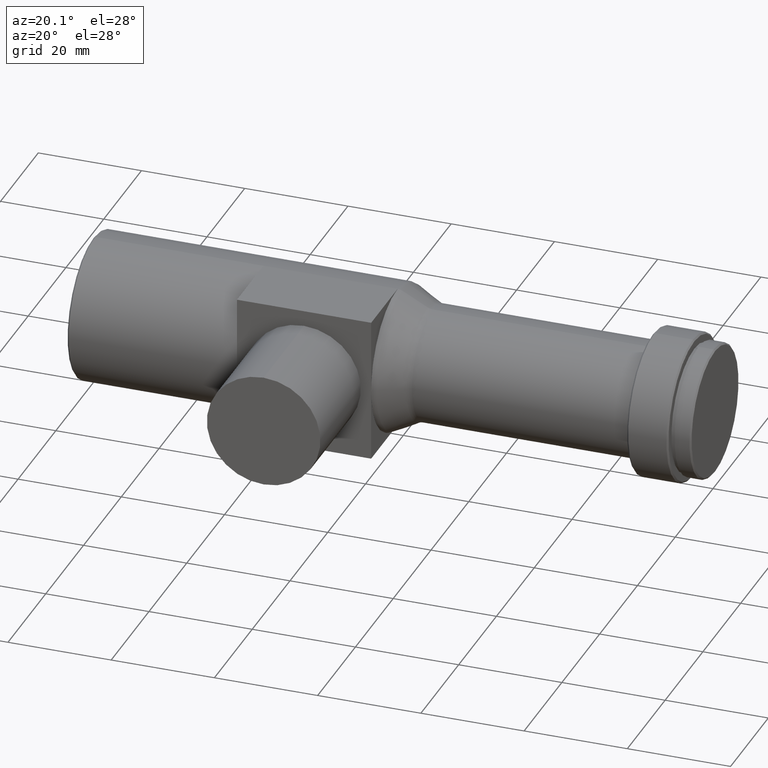
[diagram: clean part render]
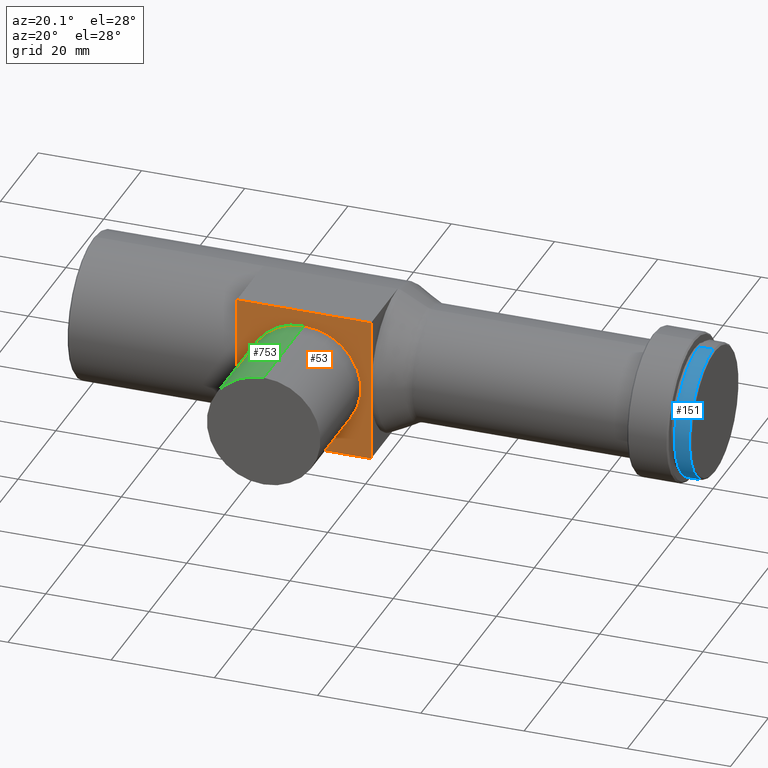
[diagram: same view with three faces highlighted in distinct colors, each labeled with its STEP entity id]
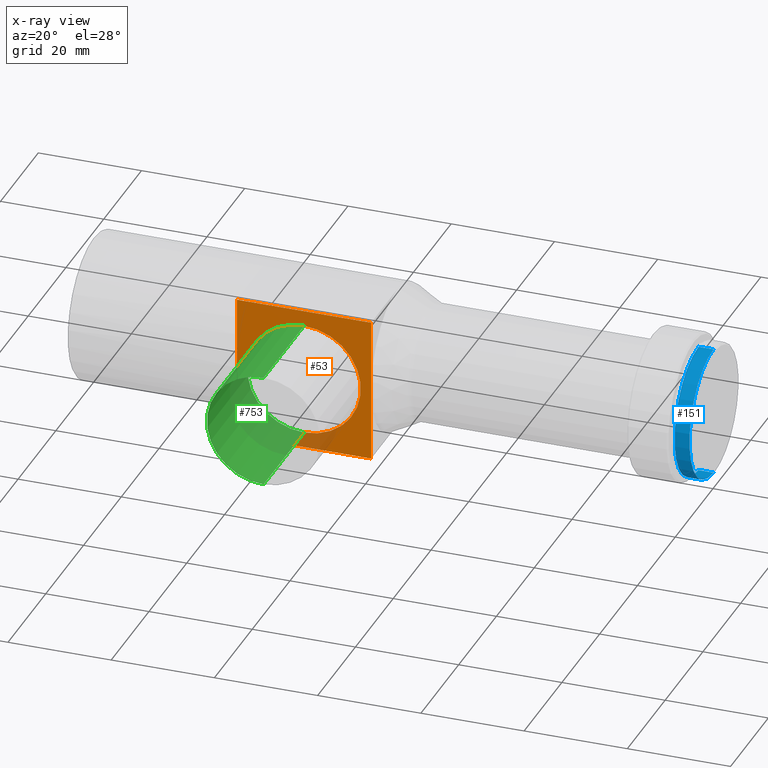
[diagram: x-ray of the same camera — body ghosted, the three highlighted faces saturated]
A machine part, auxiliary view with three faces highlighted in distinct colors.
The next image is the same camera in x-ray (body ghosted, the three faces saturated) — at least one of them is partly hidden behind the body in this view.
Their STEP definitions:

[orange] entity #53 — the highlighted planar face has unit normal (0, 1, 0).
#12 = EDGE_CURVE ( 'NONE', #388, #1017, #452, .T. ) ;
#20 = ORIENTED_EDGE ( 'NONE', *, *, #863, .F. ) ;
#36 = VERTEX_POINT ( 'NONE', #768 ) ;
#37 = ORIENTED_EDGE ( 'NONE', *, *, #716, .T. ) ;
#39 = EDGE_CURVE ( 'NONE', #36, #77, #462, .T. ) ;
#53 = ADVANCED_FACE ( 'NONE', ( #989, #427 ), #937, .F. ) ;
#63 = EDGE_CURVE ( 'NONE', #584, #829, #1081, .T. ) ;
#70 = DIRECTION ( 'NONE',  ( -0.0000000000000000000, 1.000000000000000000, -0.0000000000000000000 ) ) ;
#77 = VERTEX_POINT ( 'NONE', #678 ) ;
#94 = AXIS2_PLACEMENT_3D ( 'NONE', #1011, #1007, #334 ) ;
#100 = CARTESIAN_POINT ( 'NONE',  ( 32.89999999999999900, -14.00000000000000000, 14.00000000000000000 ) ) ;
#162 = CARTESIAN_POINT ( 'NONE',  ( 32.89999999999999900, -14.00000000000000000, 0.0000000000000000000 ) ) ;
#164 = CARTESIAN_POINT ( 'NONE',  ( 32.89999999999999900, -14.00000000000000000, 14.00000000000000000 ) ) ;
#214 = CARTESIAN_POINT ( 'NONE',  ( 58.89999999999999100, -14.00000000000000000, 14.00000000000000000 ) ) ;
#233 = LINE ( 'NONE', #565, #841 ) ;
#296 = DIRECTION ( 'NONE',  ( -0.0000000000000000000, -0.0000000000000000000, -1.000000000000000000 ) ) ;
#316 = LINE ( 'NONE', #214, #638 ) ;
#321 = ORIENTED_EDGE ( 'NONE', *, *, #63, .T. ) ;
#328 = EDGE_CURVE ( 'NONE', #77, #801, #316, .T. ) ;
#331 = VECTOR ( 'NONE', #296, 1000.000000000000000 ) ;
#334 = DIRECTION ( 'NONE',  ( 0.0000000000000000000, 0.0000000000000000000, 1.000000000000000000 ) ) ;
#347 = CARTESIAN_POINT ( 'NONE',  ( 45.89999999999999900, -14.00000000000000000, 10.99999999999999600 ) ) ;
#355 = CARTESIAN_POINT ( 'NONE',  ( 32.89999999999999900, -14.00000000000000000, -14.00000000000000000 ) ) ;
#388 = VERTEX_POINT ( 'NONE', #1075 ) ;
#420 = DIRECTION ( 'NONE',  ( 0.0000000000000000000, -0.0000000000000000000, 1.000000000000000000 ) ) ;
#423 = CARTESIAN_POINT ( 'NONE',  ( 32.89999999999999900, -14.00000000000000000, -14.00000000000000000 ) ) ;
#427 = FACE_OUTER_BOUND ( 'NONE', #936, .T. ) ;
#452 = LINE ( 'NONE', #164, #508 ) ;
#456 = CARTESIAN_POINT ( 'NONE',  ( 58.89999999999999100, -14.00000000000000000, -14.00000000000000000 ) ) ;
#462 = LINE ( 'NONE', #754, #655 ) ;
#465 = CARTESIAN_POINT ( 'NONE',  ( 45.89999999999999900, -14.00000000000000000, -10.99999999999999600 ) ) ;
#508 = VECTOR ( 'NONE', #596, 1000.000000000000000 ) ;
#533 = ORIENTED_EDGE ( 'NONE', *, *, #328, .F. ) ;
#534 = ORIENTED_EDGE ( 'NONE', *, *, #775, .T. ) ;
#535 = AXIS2_PLACEMENT_3D ( 'NONE', #579, #70, #669 ) ;
#545 = ORIENTED_EDGE ( 'NONE', *, *, #909, .T. ) ;
#565 = CARTESIAN_POINT ( 'NONE',  ( 32.89999999999999900, -14.00000000000000000, 14.00000000000000000 ) ) ;
#579 = CARTESIAN_POINT ( 'NONE',  ( 45.89999999999999900, -14.00000000000000000, 0.0000000000000000000 ) ) ;
#584 = VERTEX_POINT ( 'NONE', #347 ) ;
#588 = EDGE_LOOP ( 'NONE', ( #321, #545 ) ) ;
#596 = DIRECTION ( 'NONE',  ( -0.0000000000000000000, -0.0000000000000000000, -1.000000000000000000 ) ) ;
#638 = VECTOR ( 'NONE', #900, 1000.000000000000000 ) ;
#655 = VECTOR ( 'NONE', #770, 1000.000000000000000 ) ;
#669 = DIRECTION ( 'NONE',  ( 0.0000000000000000000, 0.0000000000000000000, 1.000000000000000000 ) ) ;
#671 = VERTEX_POINT ( 'NONE', #423 ) ;
#678 = CARTESIAN_POINT ( 'NONE',  ( 58.89999999999999100, -14.00000000000000000, 0.0000000000000000000 ) ) ;
#682 = CIRCLE ( 'NONE', #94, 10.99999999999999600 ) ;
#710 = ORIENTED_EDGE ( 'NONE', *, *, #39, .F. ) ;
#716 = EDGE_CURVE ( 'NONE', #1017, #671, #945, .T. ) ;
#728 = DIRECTION ( 'NONE',  ( 1.000000000000000000, 0.0000000000000000000, 0.0000000000000000000 ) ) ;
#754 = CARTESIAN_POINT ( 'NONE',  ( 58.89999999999999100, -14.00000000000000000, 14.00000000000000000 ) ) ;
#768 = CARTESIAN_POINT ( 'NONE',  ( 58.89999999999999100, -14.00000000000000000, 14.00000000000000000 ) ) ;
#770 = DIRECTION ( 'NONE',  ( -0.0000000000000000000, -0.0000000000000000000, -1.000000000000000000 ) ) ;
#775 = EDGE_CURVE ( 'NONE', #671, #801, #955, .T. ) ;
#777 = ORIENTED_EDGE ( 'NONE', *, *, #12, .T. ) ;
#784 = DIRECTION ( 'NONE',  ( 1.000000000000000000, 0.0000000000000000000, 0.0000000000000000000 ) ) ;
#801 = VERTEX_POINT ( 'NONE', #456 ) ;
#829 = VERTEX_POINT ( 'NONE', #465 ) ;
#841 = VECTOR ( 'NONE', #728, 1000.000000000000000 ) ;
#850 = DIRECTION ( 'NONE',  ( 0.0000000000000000000, 1.000000000000000000, 0.0000000000000000000 ) ) ;
#863 = EDGE_CURVE ( 'NONE', #388, #36, #233, .T. ) ;
#900 = DIRECTION ( 'NONE',  ( -0.0000000000000000000, -0.0000000000000000000, -1.000000000000000000 ) ) ;
#909 = EDGE_CURVE ( 'NONE', #829, #584, #682, .T. ) ;
#915 = VECTOR ( 'NONE', #784, 1000.000000000000000 ) ;
#936 = EDGE_LOOP ( 'NONE', ( #533, #710, #20, #777, #37, #534 ) ) ;
#937 = PLANE ( 'NONE',  #977 ) ;
#945 = LINE ( 'NONE', #100, #331 ) ;
#955 = LINE ( 'NONE', #355, #915 ) ;
#977 = AXIS2_PLACEMENT_3D ( 'NONE', #1028, #850, #420 ) ;
#989 = FACE_BOUND ( 'NONE', #588, .T. ) ;
#1007 = DIRECTION ( 'NONE',  ( -0.0000000000000000000, 1.000000000000000000, -0.0000000000000000000 ) ) ;
#1011 = CARTESIAN_POINT ( 'NONE',  ( 45.89999999999999900, -14.00000000000000000, 0.0000000000000000000 ) ) ;
#1017 = VERTEX_POINT ( 'NONE', #162 ) ;
#1028 = CARTESIAN_POINT ( 'NONE',  ( 32.89999999999999900, -14.00000000000000000, 14.00000000000000000 ) ) ;
#1075 = CARTESIAN_POINT ( 'NONE',  ( 32.89999999999999900, -14.00000000000000000, 14.00000000000000000 ) ) ;
#1081 = CIRCLE ( 'NONE', #535, 10.99999999999999600 ) ;

[blue] entity #151 — the highlighted cylindrical surface (partial cylindrical patch) has radius 12.7 mm, axis along (-1, -0, -0).
#4 = VECTOR ( 'NONE', #928, 1000.000000000000000 ) ;
#51 = FACE_OUTER_BOUND ( 'NONE', #883, .T. ) ;
#65 = CYLINDRICAL_SURFACE ( 'NONE', #1039, 12.70000000000000300 ) ;
#81 = VERTEX_POINT ( 'NONE', #848 ) ;
#88 = CARTESIAN_POINT ( 'NONE',  ( 0.0000000000000000000, 0.0000000000000000000, 0.0000000000000000000 ) ) ;
#98 = DIRECTION ( 'NONE',  ( -1.000000000000000000, -0.0000000000000000000, -0.0000000000000000000 ) ) ;
#130 = VERTEX_POINT ( 'NONE', #349 ) ;
#151 = ADVANCED_FACE ( 'NONE', ( #51 ), #65, .T. ) ;
#204 = VECTOR ( 'NONE', #543, 1000.000000000000000 ) ;
#229 = DIRECTION ( 'NONE',  ( -1.000000000000000000, -0.0000000000000000000, -0.0000000000000000000 ) ) ;
#249 = CARTESIAN_POINT ( 'NONE',  ( 0.0000000000000000000, 1.555301434917138800E-015, -12.70000000000000300 ) ) ;
#286 = LINE ( 'NONE', #249, #4 ) ;
#317 = DIRECTION ( 'NONE',  ( -1.000000000000000000, -0.0000000000000000000, -0.0000000000000000000 ) ) ;
#323 = CARTESIAN_POINT ( 'NONE',  ( 117.2000000000000000, 0.0000000000000000000, 0.0000000000000000000 ) ) ;
#326 = DIRECTION ( 'NONE',  ( 0.0000000000000000000, 0.0000000000000000000, 1.000000000000000000 ) ) ;
#349 = CARTESIAN_POINT ( 'NONE',  ( 117.2000000000000000, 1.555301434917138800E-015, -12.70000000000000300 ) ) ;
#407 = DIRECTION ( 'NONE',  ( 0.0000000000000000000, 0.0000000000000000000, 1.000000000000000000 ) ) ;
#442 = ORIENTED_EDGE ( 'NONE', *, *, #926, .F. ) ;
#450 = CIRCLE ( 'NONE', #594, 12.70000000000000300 ) ;
#455 = EDGE_CURVE ( 'NONE', #847, #642, #450, .T. ) ;
#457 = CARTESIAN_POINT ( 'NONE',  ( 0.0000000000000000000, 0.0000000000000000000, 12.70000000000000300 ) ) ;
#543 = DIRECTION ( 'NONE',  ( -1.000000000000000000, -0.0000000000000000000, -0.0000000000000000000 ) ) ;
#586 = EDGE_CURVE ( 'NONE', #847, #130, #286, .T. ) ;
#594 = AXIS2_PLACEMENT_3D ( 'NONE', #912, #317, #326 ) ;
#642 = VERTEX_POINT ( 'NONE', #767 ) ;
#701 = ORIENTED_EDGE ( 'NONE', *, *, #455, .T. ) ;
#765 = ORIENTED_EDGE ( 'NONE', *, *, #1102, .T. ) ;
#767 = CARTESIAN_POINT ( 'NONE',  ( 120.1000000000000100, 0.0000000000000000000, 12.70000000000000300 ) ) ;
#797 = LINE ( 'NONE', #457, #204 ) ;
#820 = CARTESIAN_POINT ( 'NONE',  ( 120.1000000000000100, 1.555301434917138800E-015, -12.70000000000000300 ) ) ;
#847 = VERTEX_POINT ( 'NONE', #820 ) ;
#848 = CARTESIAN_POINT ( 'NONE',  ( 117.2000000000000000, 0.0000000000000000000, 12.70000000000000300 ) ) ;
#883 = EDGE_LOOP ( 'NONE', ( #958, #701, #765, #442 ) ) ;
#912 = CARTESIAN_POINT ( 'NONE',  ( 120.1000000000000100, 0.0000000000000000000, 0.0000000000000000000 ) ) ;
#926 = EDGE_CURVE ( 'NONE', #130, #81, #1077, .T. ) ;
#928 = DIRECTION ( 'NONE',  ( -1.000000000000000000, -0.0000000000000000000, -0.0000000000000000000 ) ) ;
#953 = AXIS2_PLACEMENT_3D ( 'NONE', #323, #229, #407 ) ;
#958 = ORIENTED_EDGE ( 'NONE', *, *, #586, .F. ) ;
#1038 = DIRECTION ( 'NONE',  ( 0.0000000000000000000, 0.0000000000000000000, 1.000000000000000000 ) ) ;
#1039 = AXIS2_PLACEMENT_3D ( 'NONE', #88, #98, #1038 ) ;
#1077 = CIRCLE ( 'NONE', #953, 12.70000000000000300 ) ;
#1102 = EDGE_CURVE ( 'NONE', #642, #81, #797, .T. ) ;

[green] entity #753 — the highlighted cylindrical surface (partial cylindrical patch) has radius 11 mm, axis along (-0, 1, -0).
#8 = EDGE_LOOP ( 'NONE', ( #350, #193, #617, #1047 ) ) ;
#46 = EDGE_CURVE ( 'NONE', #396, #584, #489, .T. ) ;
#60 = CARTESIAN_POINT ( 'NONE',  ( 45.89999999999999900, -35.39999999999999900, -10.99999999999999600 ) ) ;
#82 = CARTESIAN_POINT ( 'NONE',  ( 45.89999999999999900, -35.39999999999999900, 0.0000000000000000000 ) ) ;
#90 = DIRECTION ( 'NONE',  ( -0.0000000000000000000, 1.000000000000000000, -0.0000000000000000000 ) ) ;
#94 = AXIS2_PLACEMENT_3D ( 'NONE', #1011, #1007, #334 ) ;
#128 = AXIS2_PLACEMENT_3D ( 'NONE', #82, #259, #859 ) ;
#174 = CARTESIAN_POINT ( 'NONE',  ( 45.89999999999999900, 0.0000000000000000000, -10.99999999999999600 ) ) ;
#191 = FACE_OUTER_BOUND ( 'NONE', #8, .T. ) ;
#193 = ORIENTED_EDGE ( 'NONE', *, *, #562, .T. ) ;
#200 = DIRECTION ( 'NONE',  ( 0.0000000000000000000, 0.0000000000000000000, 1.000000000000000000 ) ) ;
#259 = DIRECTION ( 'NONE',  ( -0.0000000000000000000, 1.000000000000000000, -0.0000000000000000000 ) ) ;
#334 = DIRECTION ( 'NONE',  ( 0.0000000000000000000, 0.0000000000000000000, 1.000000000000000000 ) ) ;
#347 = CARTESIAN_POINT ( 'NONE',  ( 45.89999999999999900, -14.00000000000000000, 10.99999999999999600 ) ) ;
#350 = ORIENTED_EDGE ( 'NONE', *, *, #604, .F. ) ;
#384 = CARTESIAN_POINT ( 'NONE',  ( 45.89999999999999900, -35.39999999999999900, 10.99999999999999600 ) ) ;
#396 = VERTEX_POINT ( 'NONE', #384 ) ;
#436 = DIRECTION ( 'NONE',  ( -0.0000000000000000000, 1.000000000000000000, -0.0000000000000000000 ) ) ;
#437 = VECTOR ( 'NONE', #90, 1000.000000000000000 ) ;
#465 = CARTESIAN_POINT ( 'NONE',  ( 45.89999999999999900, -14.00000000000000000, -10.99999999999999600 ) ) ;
#489 = LINE ( 'NONE', #1099, #973 ) ;
#501 = DIRECTION ( 'NONE',  ( -0.0000000000000000000, 1.000000000000000000, -0.0000000000000000000 ) ) ;
#504 = LINE ( 'NONE', #174, #437 ) ;
#553 = CYLINDRICAL_SURFACE ( 'NONE', #853, 10.99999999999999600 ) ;
#562 = EDGE_CURVE ( 'NONE', #921, #396, #1067, .T. ) ;
#584 = VERTEX_POINT ( 'NONE', #347 ) ;
#604 = EDGE_CURVE ( 'NONE', #921, #829, #504, .T. ) ;
#617 = ORIENTED_EDGE ( 'NONE', *, *, #46, .T. ) ;
#682 = CIRCLE ( 'NONE', #94, 10.99999999999999600 ) ;
#753 = ADVANCED_FACE ( 'NONE', ( #191 ), #553, .T. ) ;
#829 = VERTEX_POINT ( 'NONE', #465 ) ;
#853 = AXIS2_PLACEMENT_3D ( 'NONE', #890, #436, #200 ) ;
#859 = DIRECTION ( 'NONE',  ( 0.0000000000000000000, 0.0000000000000000000, 1.000000000000000000 ) ) ;
#890 = CARTESIAN_POINT ( 'NONE',  ( 45.89999999999999900, 0.0000000000000000000, 0.0000000000000000000 ) ) ;
#909 = EDGE_CURVE ( 'NONE', #829, #584, #682, .T. ) ;
#921 = VERTEX_POINT ( 'NONE', #60 ) ;
#973 = VECTOR ( 'NONE', #501, 1000.000000000000000 ) ;
#1007 = DIRECTION ( 'NONE',  ( -0.0000000000000000000, 1.000000000000000000, -0.0000000000000000000 ) ) ;
#1011 = CARTESIAN_POINT ( 'NONE',  ( 45.89999999999999900, -14.00000000000000000, 0.0000000000000000000 ) ) ;
#1047 = ORIENTED_EDGE ( 'NONE', *, *, #909, .F. ) ;
#1067 = CIRCLE ( 'NONE', #128, 10.99999999999999600 ) ;
#1099 = CARTESIAN_POINT ( 'NONE',  ( 45.89999999999999900, 0.0000000000000000000, 10.99999999999999600 ) ) ;